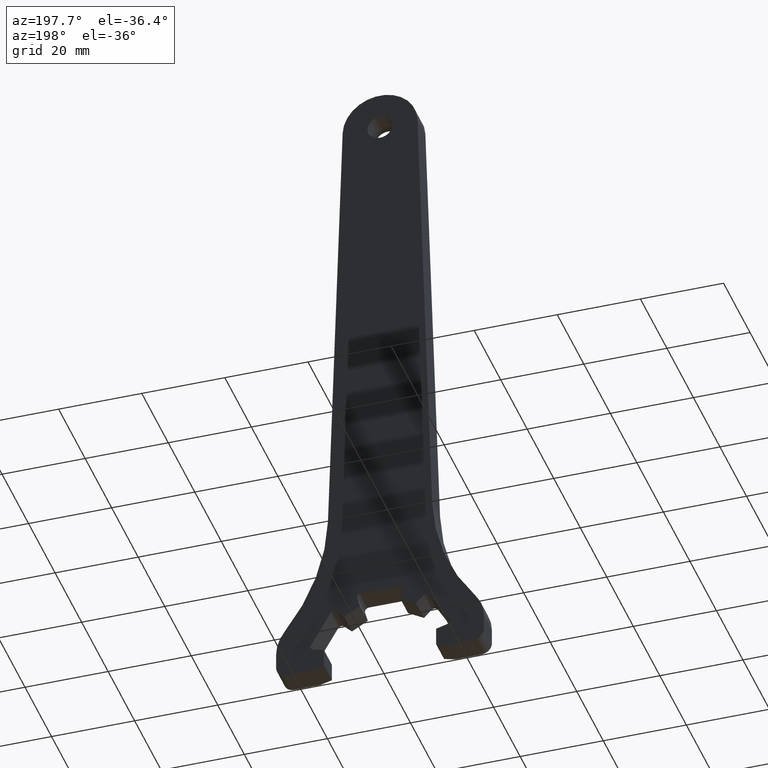
[diagram: clean part render]
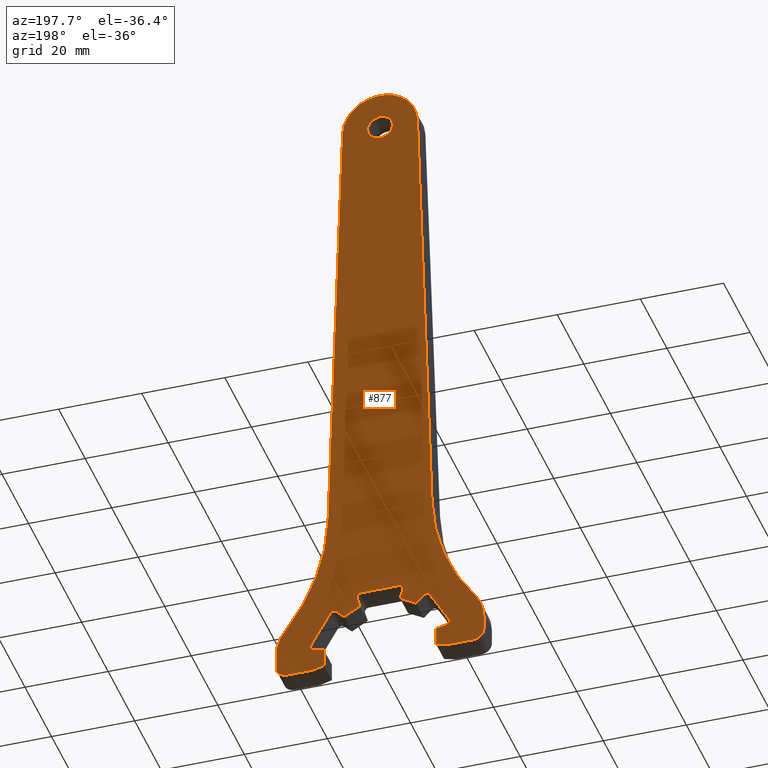
[diagram: same view with one face highlighted and labeled with its STEP entity id]
A machine part, auxiliary view. The second image highlights one B-rep face of the part: STEP entity #877.
In plain terms, the highlighted planar face has unit normal (0, 1, -0).
Its self-contained STEP definition (entity closure, byte-faithful):
#11 = ORIENTED_EDGE ( 'NONE', *, *, #768, .T. ) ;
#18 = LINE ( 'NONE', #452, #1071 ) ;
#26 = CARTESIAN_POINT ( 'NONE',  ( 13.49999999999995700, 3.000000000000000000, 2.199999999999979700 ) ) ;
#35 = DIRECTION ( 'NONE',  ( 0.0000000000000000000, 0.0000000000000000000, 1.000000000000000000 ) ) ;
#36 = VERTEX_POINT ( 'NONE', #592 ) ;
#38 = EDGE_CURVE ( 'NONE', #1256, #576, #605, .T. ) ;
#39 = DIRECTION ( 'NONE',  ( 0.0000000000000000000, 1.000000000000000000, -0.0000000000000000000 ) ) ;
#40 = CARTESIAN_POINT ( 'NONE',  ( 8.995353281733338600, 3.000000000000000000, 148.3557527634169700 ) ) ;
#44 = DIRECTION ( 'NONE',  ( 0.0000000000000000000, 0.0000000000000000000, 1.000000000000000000 ) ) ;
#48 = AXIS2_PLACEMENT_3D ( 'NONE', #539, #1268, #644 ) ;
#51 = DIRECTION ( 'NONE',  ( 0.0000000000000000000, 0.0000000000000000000, 1.000000000000000000 ) ) ;
#55 = EDGE_CURVE ( 'NONE', #1184, #476, #237, .T. ) ;
#60 = CARTESIAN_POINT ( 'NONE',  ( 15.94983800380777200, 3.000000000000000000, 2.856432114707213800 ) ) ;
#70 = AXIS2_PLACEMENT_3D ( 'NONE', #681, #388, #1129 ) ;
#72 = CARTESIAN_POINT ( 'NONE',  ( 1.110223024625156500E-013, 3.000000000000000000, 148.0665826805740400 ) ) ;
#82 = ORIENTED_EDGE ( 'NONE', *, *, #550, .T. ) ;
#86 = LINE ( 'NONE', #1297, #350 ) ;
#87 = VECTOR ( 'NONE', #1068, 1000.000000000000000 ) ;
#92 = ORIENTED_EDGE ( 'NONE', *, *, #791, .F. ) ;
#93 = DIRECTION ( 'NONE',  ( 0.0000000000000000000, 1.000000000000000000, -0.0000000000000000000 ) ) ;
#94 = EDGE_CURVE ( 'NONE', #1096, #164, #478, .T. ) ;
#95 = DIRECTION ( 'NONE',  ( -0.7071067811865584500, 0.0000000000000000000, 0.7071067811865365800 ) ) ;
#101 = ORIENTED_EDGE ( 'NONE', *, *, #480, .F. ) ;
#105 = EDGE_CURVE ( 'NONE', #714, #982, #1262, .T. ) ;
#111 = EDGE_CURVE ( 'NONE', #128, #246, #443, .T. ) ;
#124 = DIRECTION ( 'NONE',  ( -0.2588190451025669200, 0.0000000000000000000, 0.9659258262890559900 ) ) ;
#128 = VERTEX_POINT ( 'NONE', #915 ) ;
#129 = DIRECTION ( 'NONE',  ( -0.03213000920477214500, 0.0000000000000000000, -0.9994836979703576300 ) ) ;
#130 = CARTESIAN_POINT ( 'NONE',  ( 22.91666666666669600, 3.000000000000000000, 9.590810946766229300 ) ) ;
#133 = EDGE_CURVE ( 'NONE', #1113, #901, #414, .T. ) ;
#134 = CARTESIAN_POINT ( 'NONE',  ( 22.50000000000002100, 3.000000000000000000, -0.4334173194260326800 ) ) ;
#137 = CARTESIAN_POINT ( 'NONE',  ( 8.655255888325664100, 3.000000000000000000, 10.59134295108998500 ) ) ;
#138 = AXIS2_PLACEMENT_3D ( 'NONE', #407, #93, #185 ) ;
#143 = VECTOR ( 'NONE', #218, 999.9999999999998900 ) ;
#145 = AXIS2_PLACEMENT_3D ( 'NONE', #1189, #205, #400 ) ;
#147 = ORIENTED_EDGE ( 'NONE', *, *, #1213, .T. ) ;
#154 = EDGE_CURVE ( 'NONE', #1152, #405, #1202, .T. ) ;
#162 = CARTESIAN_POINT ( 'NONE',  ( 0.3543285244547755800, 3.000000000000000000, -1.322372055836424000 ) ) ;
#164 = VERTEX_POINT ( 'NONE', #292 ) ;
#165 = AXIS2_PLACEMENT_3D ( 'NONE', #134, #841, #239 ) ;
#169 = ORIENTED_EDGE ( 'NONE', *, *, #1072, .T. ) ;
#185 = DIRECTION ( 'NONE',  ( 0.0000000000000000000, 0.0000000000000000000, 1.000000000000000000 ) ) ;
#186 = EDGE_CURVE ( 'NONE', #423, #1176, #86, .T. ) ;
#190 = VERTEX_POINT ( 'NONE', #60 ) ;
#191 = DIRECTION ( 'NONE',  ( -0.8660254037844471500, 0.0000000000000000000, -0.4999999999999852900 ) ) ;
#205 = DIRECTION ( 'NONE',  ( 0.0000000000000000000, 1.000000000000000000, -0.0000000000000000000 ) ) ;
#206 = ORIENTED_EDGE ( 'NONE', *, *, #624, .T. ) ;
#216 = LINE ( 'NONE', #886, #719 ) ;
#218 = DIRECTION ( 'NONE',  ( 0.9659258262890733100, 0.0000000000000000000, -0.2588190451025025300 ) ) ;
#231 = CARTESIAN_POINT ( 'NONE',  ( -15.94983800380745200, 3.000000000000000000, 2.856432114707319900 ) ) ;
#237 = LINE ( 'NONE', #421, #1054 ) ;
#239 = DIRECTION ( 'NONE',  ( 0.0000000000000000000, 0.0000000000000000000, 1.000000000000000000 ) ) ;
#246 = VERTEX_POINT ( 'NONE', #688 ) ;
#248 = EDGE_CURVE ( 'NONE', #1148, #868, #297, .T. ) ;
#252 = CIRCLE ( 'NONE', #165, 2.499999999999863200 ) ;
#259 = VERTEX_POINT ( 'NONE', #601 ) ;
#266 = DIRECTION ( 'NONE',  ( -0.5000000000000003300, 0.0000000000000000000, -0.8660254037844383700 ) ) ;
#268 = CARTESIAN_POINT ( 'NONE',  ( 15.69101895870533900, 3.000000000000000000, 3.822357940996168300 ) ) ;
#275 = CARTESIAN_POINT ( 'NONE',  ( 25.00000000000002100, 3.000000000000000000, 0.0000000000000000000 ) ) ;
#276 = LINE ( 'NONE', #1090, #440 ) ;
#283 = CARTESIAN_POINT ( 'NONE',  ( 0.0000000000000000000, 3.000000000000000000, 0.0000000000000000000 ) ) ;
#292 = CARTESIAN_POINT ( 'NONE',  ( -22.49999999999996400, 3.000000000000000000, -2.933417319425757300 ) ) ;
#296 = LINE ( 'NONE', #1116, #1069 ) ;
#297 = CIRCLE ( 'NONE', #614, 2.999999999999891600 ) ;
#307 = DIRECTION ( 'NONE',  ( -0.8660254037844411500, 0.0000000000000000000, 0.4999999999999958400 ) ) ;
#310 = ORIENTED_EDGE ( 'NONE', *, *, #1302, .T. ) ;
#311 = CIRCLE ( 'NONE', #457, 9.000000000000007100 ) ;
#314 = ORIENTED_EDGE ( 'NONE', *, *, #248, .F. ) ;
#320 = EDGE_CURVE ( 'NONE', #576, #991, #1246, .T. ) ;
#323 = LINE ( 'NONE', #906, #892 ) ;
#334 = LINE ( 'NONE', #162, #781 ) ;
#341 = CARTESIAN_POINT ( 'NONE',  ( -5.501176226381854700, 3.000000000000000000, 15.24118095489756900 ) ) ;
#350 = VECTOR ( 'NONE', #695, 1000.000000000000000 ) ;
#351 = CIRCLE ( 'NONE', #620, 0.9999999999998621100 ) ;
#352 = EDGE_CURVE ( 'NONE', #1152, #594, #426, .T. ) ;
#355 = ORIENTED_EDGE ( 'NONE', *, *, #1011, .F. ) ;
#359 = DIRECTION ( 'NONE',  ( 0.0000000000000000000, 1.000000000000000000, -0.0000000000000000000 ) ) ;
#365 = LINE ( 'NONE', #995, #913 ) ;
#369 = DIRECTION ( 'NONE',  ( 0.0000000000000000000, 0.0000000000000000000, 1.000000000000000000 ) ) ;
#375 = DIRECTION ( 'NONE',  ( 0.0000000000000000000, 0.0000000000000000000, -1.000000000000000000 ) ) ;
#378 = PLANE ( 'NONE',  #1080 ) ;
#379 = DIRECTION ( 'NONE',  ( -0.4999999999999975600, 0.0000000000000000000, 0.8660254037844400400 ) ) ;
#380 = EDGE_CURVE ( 'NONE', #476, #982, #216, .T. ) ;
#388 = DIRECTION ( 'NONE',  ( 0.0000000000000000000, 1.000000000000000000, -0.0000000000000000000 ) ) ;
#389 = EDGE_CURVE ( 'NONE', #868, #1148, #1030, .T. ) ;
#391 = CARTESIAN_POINT ( 'NONE',  ( -4.535250400092783400, 3.000000000000000000, 16.49999999999995700 ) ) ;
#398 = AXIS2_PLACEMENT_3D ( 'NONE', #1179, #563, #1290 ) ;
#400 = DIRECTION ( 'NONE',  ( 0.0000000000000000000, 0.0000000000000000000, 1.000000000000000000 ) ) ;
#405 = VERTEX_POINT ( 'NONE', #391 ) ;
#407 = CARTESIAN_POINT ( 'NONE',  ( 11.15576855861216600, 3.000000000000000000, 11.67764205900367900 ) ) ;
#414 = LINE ( 'NONE', #1010, #143 ) ;
#415 = VECTOR ( 'NONE', #1166, 1000.000000000000100 ) ;
#416 = ORIENTED_EDGE ( 'NONE', *, *, #810, .F. ) ;
#420 = VERTEX_POINT ( 'NONE', #1196 ) ;
#421 = CARTESIAN_POINT ( 'NONE',  ( -6.749999999999772600, 3.000000000000000000, 11.69134295108998600 ) ) ;
#423 = VERTEX_POINT ( 'NONE', #40 ) ;
#426 = CIRCLE ( 'NONE', #1059, 0.9999999999998586700 ) ;
#437 = DIRECTION ( 'NONE',  ( 0.0000000000000000000, 0.0000000000000000000, -1.000000000000000000 ) ) ;
#440 = VECTOR ( 'NONE', #1190, 1000.000000000000000 ) ;
#441 = CARTESIAN_POINT ( 'NONE',  ( 5.501176226381631700, 3.000000000000000000, 15.24118095489779300 ) ) ;
#442 = EDGE_CURVE ( 'NONE', #661, #128, #686, .T. ) ;
#443 = CIRCLE ( 'NONE', #138, 1.000000000000240300 ) ;
#448 = DIRECTION ( 'NONE',  ( 0.0000000000000000000, 0.0000000000000000000, -1.000000000000000000 ) ) ;
#450 = ORIENTED_EDGE ( 'NONE', *, *, #186, .T. ) ;
#452 = CARTESIAN_POINT ( 'NONE',  ( -0.3543285244549745900, 3.000000000000000000, 1.322372055836949200 ) ) ;
#457 = AXIS2_PLACEMENT_3D ( 'NONE', #971, #359, #1075 ) ;
#476 = VERTEX_POINT ( 'NONE', #951 ) ;
#477 = VECTOR ( 'NONE', #375, 1000.000000000000000 ) ;
#478 = LINE ( 'NONE', #1240, #718 ) ;
#480 = EDGE_CURVE ( 'NONE', #998, #36, #619, .T. ) ;
#487 = DIRECTION ( 'NONE',  ( 0.0000000000000000000, 1.000000000000000000, -0.0000000000000000000 ) ) ;
#499 = EDGE_CURVE ( 'NONE', #667, #405, #351, .T. ) ;
#509 = ORIENTED_EDGE ( 'NONE', *, *, #1098, .F. ) ;
#518 = ORIENTED_EDGE ( 'NONE', *, *, #55, .T. ) ;
#520 = VERTEX_POINT ( 'NONE', #130 ) ;
#523 = ORIENTED_EDGE ( 'NONE', *, *, #320, .F. ) ;
#524 = CARTESIAN_POINT ( 'NONE',  ( -13.75027770088628600, 3.000000000000000000, 0.4420247673822012000 ) ) ;
#531 = CARTESIAN_POINT ( 'NONE',  ( -0.9680435313821622600, 3.000000000000000000, 0.9680435313821622600 ) ) ;
#532 = ORIENTED_EDGE ( 'NONE', *, *, #674, .T. ) ;
#539 = CARTESIAN_POINT ( 'NONE',  ( -15.00000000000001400, 3.000000000000000000, 3.481278322343017700 ) ) ;
#540 = CARTESIAN_POINT ( 'NONE',  ( 13.49999999999995700, 3.000000000000000000, -2.199999999999979700 ) ) ;
#550 = EDGE_CURVE ( 'NONE', #420, #1096, #18, .T. ) ;
#555 = CARTESIAN_POINT ( 'NONE',  ( -4.844744111674348400, 3.000000000000000000, 12.79134295108974600 ) ) ;
#559 = CARTESIAN_POINT ( 'NONE',  ( 25.00000000000002100, 3.000000000000000000, -0.4334173194260326800 ) ) ;
#561 = CARTESIAN_POINT ( 'NONE',  ( -14.28941916244337500, 3.000000000000000000, 8.250000000000085300 ) ) ;
#563 = DIRECTION ( 'NONE',  ( 0.0000000000000000000, 1.000000000000000000, -0.0000000000000000000 ) ) ;
#566 = AXIS2_PLACEMENT_3D ( 'NONE', #646, #39, #752 ) ;
#573 = CARTESIAN_POINT ( 'NONE',  ( 1.113896965022598500E-013, 3.000000000000000000, 151.0665826805739300 ) ) ;
#576 = VERTEX_POINT ( 'NONE', #231 ) ;
#588 = DIRECTION ( 'NONE',  ( -1.000000000000000000, 0.0000000000000000000, 0.0000000000000000000 ) ) ;
#592 = CARTESIAN_POINT ( 'NONE',  ( -24.99999999999996800, 3.000000000000000000, -0.4334173194260326800 ) ) ;
#594 = VERTEX_POINT ( 'NONE', #441 ) ;
#595 = VERTEX_POINT ( 'NONE', #656 ) ;
#596 = DIRECTION ( 'NONE',  ( -0.9659258262890635400, 0.0000000000000000000, 0.2588190451025384500 ) ) ;
#601 = CARTESIAN_POINT ( 'NONE',  ( -22.91666666666676700, 3.000000000000000000, 9.590810946766188400 ) ) ;
#602 = DIRECTION ( 'NONE',  ( 0.0000000000000000000, 0.0000000000000000000, 1.000000000000000000 ) ) ;
#603 = CARTESIAN_POINT ( 'NONE',  ( -24.99999999999996800, 3.000000000000000000, 3.481278322343461800 ) ) ;
#604 = VECTOR ( 'NONE', #448, 1000.000000000000000 ) ;
#605 = LINE ( 'NONE', #735, #783 ) ;
#610 = ORIENTED_EDGE ( 'NONE', *, *, #38, .F. ) ;
#614 = AXIS2_PLACEMENT_3D ( 'NONE', #72, #1101, #806 ) ;
#619 = LINE ( 'NONE', #966, #87 ) ;
#620 = AXIS2_PLACEMENT_3D ( 'NONE', #1258, #836, #51 ) ;
#623 = DIRECTION ( 'NONE',  ( -0.9659258262890718600, 0.0000000000000000000, -0.2588190451025074700 ) ) ;
#624 = EDGE_CURVE ( 'NONE', #520, #1033, #728, .T. ) ;
#625 = ORIENTED_EDGE ( 'NONE', *, *, #856, .F. ) ;
#634 = ORIENTED_EDGE ( 'NONE', *, *, #154, .T. ) ;
#643 = VECTOR ( 'NONE', #896, 1000.000000000000000 ) ;
#644 = DIRECTION ( 'NONE',  ( 0.0000000000000000000, 0.0000000000000000000, 1.000000000000000000 ) ) ;
#646 = CARTESIAN_POINT ( 'NONE',  ( 62.49999999999988600, 3.000000000000000000, 40.13847406888149300 ) ) ;
#651 = DIRECTION ( 'NONE',  ( 0.0000000000000000000, 1.000000000000000000, -0.0000000000000000000 ) ) ;
#654 = CARTESIAN_POINT ( 'NONE',  ( -12.52581510148198500, 3.000000000000000000, 38.53197360864291500 ) ) ;
#656 = CARTESIAN_POINT ( 'NONE',  ( 4.844744111674126300, 3.000000000000000000, 12.79134295108996400 ) ) ;
#661 = VERTEX_POINT ( 'NONE', #137 ) ;
#662 = CIRCLE ( 'NONE', #919, 2.499999999999863200 ) ;
#667 = VERTEX_POINT ( 'NONE', #341 ) ;
#672 = DIRECTION ( 'NONE',  ( 0.0000000000000000000, 1.000000000000000000, -0.0000000000000000000 ) ) ;
#674 = EDGE_CURVE ( 'NONE', #1256, #420, #1247, .T. ) ;
#681 = CARTESIAN_POINT ( 'NONE',  ( -11.15576855861261100, 3.000000000000000000, 11.67764205900390100 ) ) ;
#682 = EDGE_CURVE ( 'NONE', #998, #259, #1180, .T. ) ;
#686 = LINE ( 'NONE', #531, #415 ) ;
#688 = CARTESIAN_POINT ( 'NONE',  ( 12.02179396239716900, 3.000000000000000000, 12.17764205900406800 ) ) ;
#690 = DIRECTION ( 'NONE',  ( 0.0000000000000000000, 1.000000000000000000, -0.0000000000000000000 ) ) ;
#695 = DIRECTION ( 'NONE',  ( 0.03213000920477063900, 0.0000000000000000000, -0.9994836979703577400 ) ) ;
#703 = CIRCLE ( 'NONE', #566, 50.00000000000007100 ) ;
#706 = LINE ( 'NONE', #849, #604 ) ;
#710 = ORIENTED_EDGE ( 'NONE', *, *, #1139, .T. ) ;
#714 = VERTEX_POINT ( 'NONE', #956 ) ;
#717 = FACE_BOUND ( 'NONE', #732, .T. ) ;
#718 = VECTOR ( 'NONE', #588, 1000.000000000000000 ) ;
#719 = VECTOR ( 'NONE', #95, 1000.000000000000000 ) ;
#720 = EDGE_CURVE ( 'NONE', #1046, #1113, #706, .T. ) ;
#728 = CIRCLE ( 'NONE', #1108, 10.00000000000001600 ) ;
#729 = AXIS2_PLACEMENT_3D ( 'NONE', #268, #985, #369 ) ;
#732 = EDGE_LOOP ( 'NONE', ( #314, #1200 ) ) ;
#735 = CARTESIAN_POINT ( 'NONE',  ( -0.3543285244551301900, 3.000000000000000000, -1.322372055837360200 ) ) ;
#745 = LINE ( 'NONE', #275, #477 ) ;
#748 = CARTESIAN_POINT ( 'NONE',  ( 15.00000000000001400, 3.000000000000000000, 3.481278322343017700 ) ) ;
#752 = DIRECTION ( 'NONE',  ( 0.0000000000000000000, 0.0000000000000000000, 1.000000000000000000 ) ) ;
#757 = CARTESIAN_POINT ( 'NONE',  ( 4.535250400092505400, 3.000000000000000000, 16.49999999999995700 ) ) ;
#763 = VECTOR ( 'NONE', #437, 1000.000000000000000 ) ;
#768 = EDGE_CURVE ( 'NONE', #937, #423, #311, .T. ) ;
#770 = VERTEX_POINT ( 'NONE', #654 ) ;
#773 = VERTEX_POINT ( 'NONE', #559 ) ;
#781 = VECTOR ( 'NONE', #1283, 1000.000000000000100 ) ;
#783 = VECTOR ( 'NONE', #596, 1000.000000000000100 ) ;
#787 = VERTEX_POINT ( 'NONE', #1174 ) ;
#791 = EDGE_CURVE ( 'NONE', #770, #259, #1086, .T. ) ;
#794 = DIRECTION ( 'NONE',  ( 0.0000000000000000000, 0.0000000000000000000, 1.000000000000000000 ) ) ;
#797 = EDGE_CURVE ( 'NONE', #1046, #190, #334, .T. ) ;
#802 = ORIENTED_EDGE ( 'NONE', *, *, #133, .F. ) ;
#804 = CARTESIAN_POINT ( 'NONE',  ( -10.44866177742615000, 3.000000000000000000, 12.38474884019047200 ) ) ;
#806 = DIRECTION ( 'NONE',  ( 0.0000000000000000000, 0.0000000000000000000, 1.000000000000000000 ) ) ;
#810 = EDGE_CURVE ( 'NONE', #787, #190, #1053, .T. ) ;
#836 = DIRECTION ( 'NONE',  ( 0.0000000000000000000, 1.000000000000000000, -0.0000000000000000000 ) ) ;
#841 = DIRECTION ( 'NONE',  ( 0.0000000000000000000, 1.000000000000000000, -0.0000000000000000000 ) ) ;
#843 = DIRECTION ( 'NONE',  ( 0.0000000000000000000, 1.000000000000000000, -0.0000000000000000000 ) ) ;
#848 = EDGE_CURVE ( 'NONE', #1033, #773, #745, .T. ) ;
#849 = CARTESIAN_POINT ( 'NONE',  ( 13.49999999999995700, 3.000000000000000000, 0.0000000000000000000 ) ) ;
#850 = DIRECTION ( 'NONE',  ( 0.2588190451025669200, 0.0000000000000000000, 0.9659258262890559900 ) ) ;
#856 = EDGE_CURVE ( 'NONE', #901, #1250, #276, .T. ) ;
#867 = CARTESIAN_POINT ( 'NONE',  ( 22.50000000000002100, 3.000000000000000000, -2.933417319425757300 ) ) ;
#868 = VERTEX_POINT ( 'NONE', #573 ) ;
#877 = ADVANCED_FACE ( 'NONE', ( #717, #954 ), #378, .T. ) ;
#881 = ORIENTED_EDGE ( 'NONE', *, *, #1118, .T. ) ;
#884 = ORIENTED_EDGE ( 'NONE', *, *, #111, .F. ) ;
#886 = CARTESIAN_POINT ( 'NONE',  ( 0.9680435313823233500, 3.000000000000000000, 0.9680435313823533300 ) ) ;
#891 = ORIENTED_EDGE ( 'NONE', *, *, #981, .T. ) ;
#892 = VECTOR ( 'NONE', #307, 1000.000000000000000 ) ;
#896 = DIRECTION ( 'NONE',  ( -1.000000000000000000, 0.0000000000000000000, 0.0000000000000000000 ) ) ;
#901 = VERTEX_POINT ( 'NONE', #1204 ) ;
#903 = CARTESIAN_POINT ( 'NONE',  ( -15.69101895870495000, 3.000000000000000000, 3.822357940996390400 ) ) ;
#906 = CARTESIAN_POINT ( 'NONE',  ( 6.749999999999940500, 3.000000000000000000, 11.69134295108994900 ) ) ;
#913 = VECTOR ( 'NONE', #379, 1000.000000000000000 ) ;
#915 = CARTESIAN_POINT ( 'NONE',  ( 10.44866177742570600, 3.000000000000000000, 12.38474884019003000 ) ) ;
#916 = ORIENTED_EDGE ( 'NONE', *, *, #848, .T. ) ;
#919 = AXIS2_PLACEMENT_3D ( 'NONE', #1275, #651, #44 ) ;
#920 = ORIENTED_EDGE ( 'NONE', *, *, #499, .F. ) ;
#937 = VERTEX_POINT ( 'NONE', #1007 ) ;
#940 = VECTOR ( 'NONE', #850, 999.9999999999998900 ) ;
#951 = CARTESIAN_POINT ( 'NONE',  ( -8.655255888325609000, 3.000000000000000000, 10.59134295108999000 ) ) ;
#954 = FACE_OUTER_BOUND ( 'NONE', #1149, .T. ) ;
#956 = CARTESIAN_POINT ( 'NONE',  ( -12.02179396239705500, 3.000000000000000000, 12.17764205900384600 ) ) ;
#963 = ORIENTED_EDGE ( 'NONE', *, *, #682, .T. ) ;
#966 = CARTESIAN_POINT ( 'NONE',  ( -24.99999999999996800, 3.000000000000000000, 0.0000000000000000000 ) ) ;
#971 = CARTESIAN_POINT ( 'NONE',  ( 1.110223024625156500E-013, 3.000000000000000000, 148.0665826805740400 ) ) ;
#981 = EDGE_CURVE ( 'NONE', #661, #595, #323, .T. ) ;
#982 = VERTEX_POINT ( 'NONE', #804 ) ;
#984 = ORIENTED_EDGE ( 'NONE', *, *, #352, .F. ) ;
#985 = DIRECTION ( 'NONE',  ( 0.0000000000000000000, 1.000000000000000000, -0.0000000000000000000 ) ) ;
#991 = VERTEX_POINT ( 'NONE', #1217 ) ;
#995 = CARTESIAN_POINT ( 'NONE',  ( 14.28941916244356800, 3.000000000000000000, 8.250000000000136800 ) ) ;
#998 = VERTEX_POINT ( 'NONE', #603 ) ;
#999 = AXIS2_PLACEMENT_3D ( 'NONE', #903, #690, #602 ) ;
#1007 = CARTESIAN_POINT ( 'NONE',  ( -8.995353281733120100, 3.000000000000000000, 148.3557527634169700 ) ) ;
#1009 = ORIENTED_EDGE ( 'NONE', *, *, #105, .F. ) ;
#1010 = CARTESIAN_POINT ( 'NONE',  ( 0.3543285244549497200, 3.000000000000000000, 1.322372055836883700 ) ) ;
#1011 = EDGE_CURVE ( 'NONE', #1184, #667, #296, .T. ) ;
#1030 = CIRCLE ( 'NONE', #145, 2.999999999999891600 ) ;
#1033 = VERTEX_POINT ( 'NONE', #1253 ) ;
#1034 = EDGE_CURVE ( 'NONE', #937, #770, #1321, .T. ) ;
#1040 = VECTOR ( 'NONE', #129, 1000.000000000000100 ) ;
#1046 = VERTEX_POINT ( 'NONE', #26 ) ;
#1049 = ORIENTED_EDGE ( 'NONE', *, *, #94, .T. ) ;
#1053 = CIRCLE ( 'NONE', #729, 1.000000000000025100 ) ;
#1054 = VECTOR ( 'NONE', #191, 1000.000000000000000 ) ;
#1058 = ORIENTED_EDGE ( 'NONE', *, *, #380, .T. ) ;
#1059 = AXIS2_PLACEMENT_3D ( 'NONE', #1215, #487, #794 ) ;
#1067 = CARTESIAN_POINT ( 'NONE',  ( 1.110223024625156500E-013, 3.000000000000000000, 145.0665826805741600 ) ) ;
#1068 = DIRECTION ( 'NONE',  ( 0.0000000000000000000, 0.0000000000000000000, -1.000000000000000000 ) ) ;
#1069 = VECTOR ( 'NONE', #124, 999.9999999999998900 ) ;
#1071 = VECTOR ( 'NONE', #623, 1000.000000000000000 ) ;
#1072 = EDGE_CURVE ( 'NONE', #773, #1250, #252, .T. ) ;
#1075 = DIRECTION ( 'NONE',  ( 0.0000000000000000000, 0.0000000000000000000, 1.000000000000000000 ) ) ;
#1080 = AXIS2_PLACEMENT_3D ( 'NONE', #283, #672, #1094 ) ;
#1086 = CIRCLE ( 'NONE', #398, 50.00000000000004300 ) ;
#1090 = CARTESIAN_POINT ( 'NONE',  ( 0.0000000000000000000, 3.000000000000000000, -2.933417319425757300 ) ) ;
#1092 = ORIENTED_EDGE ( 'NONE', *, *, #442, .F. ) ;
#1094 = DIRECTION ( 'NONE',  ( 0.0000000000000000000, 0.0000000000000000000, 1.000000000000000000 ) ) ;
#1096 = VERTEX_POINT ( 'NONE', #1264 ) ;
#1098 = EDGE_CURVE ( 'NONE', #520, #1176, #703, .T. ) ;
#1101 = DIRECTION ( 'NONE',  ( 0.0000000000000000000, 1.000000000000000000, -0.0000000000000000000 ) ) ;
#1108 = AXIS2_PLACEMENT_3D ( 'NONE', #748, #843, #35 ) ;
#1113 = VERTEX_POINT ( 'NONE', #540 ) ;
#1116 = CARTESIAN_POINT ( 'NONE',  ( -1.322372055836622300, 3.000000000000000000, -0.3543285244549742000 ) ) ;
#1118 = EDGE_CURVE ( 'NONE', #595, #594, #1218, .T. ) ;
#1129 = DIRECTION ( 'NONE',  ( 0.0000000000000000000, 0.0000000000000000000, 1.000000000000000000 ) ) ;
#1139 = EDGE_CURVE ( 'NONE', #164, #36, #662, .T. ) ;
#1148 = VERTEX_POINT ( 'NONE', #1067 ) ;
#1149 = EDGE_LOOP ( 'NONE', ( #509, #206, #916, #169, #625, #802, #1154, #1273, #416, #310, #884, #1092, #891, #881, #984, #634, #920, #355, #518, #1058, #1009, #147, #523, #610, #532, #82, #1049, #710, #101, #963, #92, #1327, #11, #450 ) ) ;
#1152 = VERTEX_POINT ( 'NONE', #757 ) ;
#1153 = CARTESIAN_POINT ( 'NONE',  ( -13.49999999999995700, 3.000000000000000000, 0.0000000000000000000 ) ) ;
#1154 = ORIENTED_EDGE ( 'NONE', *, *, #720, .F. ) ;
#1166 = DIRECTION ( 'NONE',  ( 0.7071067811865474600, 0.0000000000000000000, 0.7071067811865474600 ) ) ;
#1174 = CARTESIAN_POINT ( 'NONE',  ( 16.55704436248989700, 3.000000000000000000, 4.322357940996336200 ) ) ;
#1176 = VERTEX_POINT ( 'NONE', #1277 ) ;
#1179 = CARTESIAN_POINT ( 'NONE',  ( -62.49999999999988600, 3.000000000000000000, 40.13847406888149300 ) ) ;
#1180 = CIRCLE ( 'NONE', #48, 10.00000000000005300 ) ;
#1184 = VERTEX_POINT ( 'NONE', #555 ) ;
#1187 = CARTESIAN_POINT ( 'NONE',  ( -13.49999999999995700, 3.000000000000000000, 2.199999999999979700 ) ) ;
#1188 = CARTESIAN_POINT ( 'NONE',  ( 0.0000000000000000000, 3.000000000000000000, 16.49999999999995700 ) ) ;
#1189 = CARTESIAN_POINT ( 'NONE',  ( 1.110223024625156500E-013, 3.000000000000000000, 148.0665826805740400 ) ) ;
#1190 = DIRECTION ( 'NONE',  ( 1.000000000000000000, -0.0000000000000000000, 0.0000000000000000000 ) ) ;
#1196 = CARTESIAN_POINT ( 'NONE',  ( -13.49999999999995700, 3.000000000000000000, -2.199999999999979700 ) ) ;
#1200 = ORIENTED_EDGE ( 'NONE', *, *, #389, .F. ) ;
#1202 = LINE ( 'NONE', #1188, #643 ) ;
#1204 = CARTESIAN_POINT ( 'NONE',  ( 16.23715069924813600, 3.000000000000000000, -2.933417319425757800 ) ) ;
#1213 = EDGE_CURVE ( 'NONE', #714, #991, #1279, .T. ) ;
#1215 = CARTESIAN_POINT ( 'NONE',  ( 4.535250400092505400, 3.000000000000000000, 15.50000000000029100 ) ) ;
#1217 = CARTESIAN_POINT ( 'NONE',  ( -16.55704436248956000, 3.000000000000000000, 4.322357940996557300 ) ) ;
#1218 = LINE ( 'NONE', #1270, #940 ) ;
#1240 = CARTESIAN_POINT ( 'NONE',  ( 0.0000000000000000000, 3.000000000000000000, -2.933417319425757300 ) ) ;
#1245 = VECTOR ( 'NONE', #266, 1000.000000000000100 ) ;
#1246 = CIRCLE ( 'NONE', #999, 1.000000000000114600 ) ;
#1247 = LINE ( 'NONE', #1153, #763 ) ;
#1250 = VERTEX_POINT ( 'NONE', #867 ) ;
#1253 = CARTESIAN_POINT ( 'NONE',  ( 25.00000000000002100, 3.000000000000000000, 3.481278322343461800 ) ) ;
#1256 = VERTEX_POINT ( 'NONE', #1187 ) ;
#1258 = CARTESIAN_POINT ( 'NONE',  ( -4.535250400092783400, 3.000000000000000000, 15.50000000000029100 ) ) ;
#1262 = CIRCLE ( 'NONE', #70, 0.9999999999999662500 ) ;
#1264 = CARTESIAN_POINT ( 'NONE',  ( -16.23715069924808700, 3.000000000000000000, -2.933417319425758200 ) ) ;
#1268 = DIRECTION ( 'NONE',  ( 0.0000000000000000000, 1.000000000000000000, -0.0000000000000000000 ) ) ;
#1270 = CARTESIAN_POINT ( 'NONE',  ( 1.322372055836358800, 3.000000000000000000, -0.3543285244549035400 ) ) ;
#1273 = ORIENTED_EDGE ( 'NONE', *, *, #797, .T. ) ;
#1275 = CARTESIAN_POINT ( 'NONE',  ( -22.49999999999996400, 3.000000000000000000, -0.4334173194260326800 ) ) ;
#1277 = CARTESIAN_POINT ( 'NONE',  ( 12.52581510148203800, 3.000000000000000000, 38.53197360864291500 ) ) ;
#1279 = LINE ( 'NONE', #561, #1245 ) ;
#1283 = DIRECTION ( 'NONE',  ( 0.9659258262890825200, 0.0000000000000000000, 0.2588190451024677300 ) ) ;
#1290 = DIRECTION ( 'NONE',  ( 0.0000000000000000000, 0.0000000000000000000, 1.000000000000000000 ) ) ;
#1297 = CARTESIAN_POINT ( 'NONE',  ( 13.75027770088628300, 3.000000000000000000, 0.4420247673821802700 ) ) ;
#1302 = EDGE_CURVE ( 'NONE', #787, #246, #365, .T. ) ;
#1321 = LINE ( 'NONE', #524, #1040 ) ;
#1327 = ORIENTED_EDGE ( 'NONE', *, *, #1034, .F. ) ;